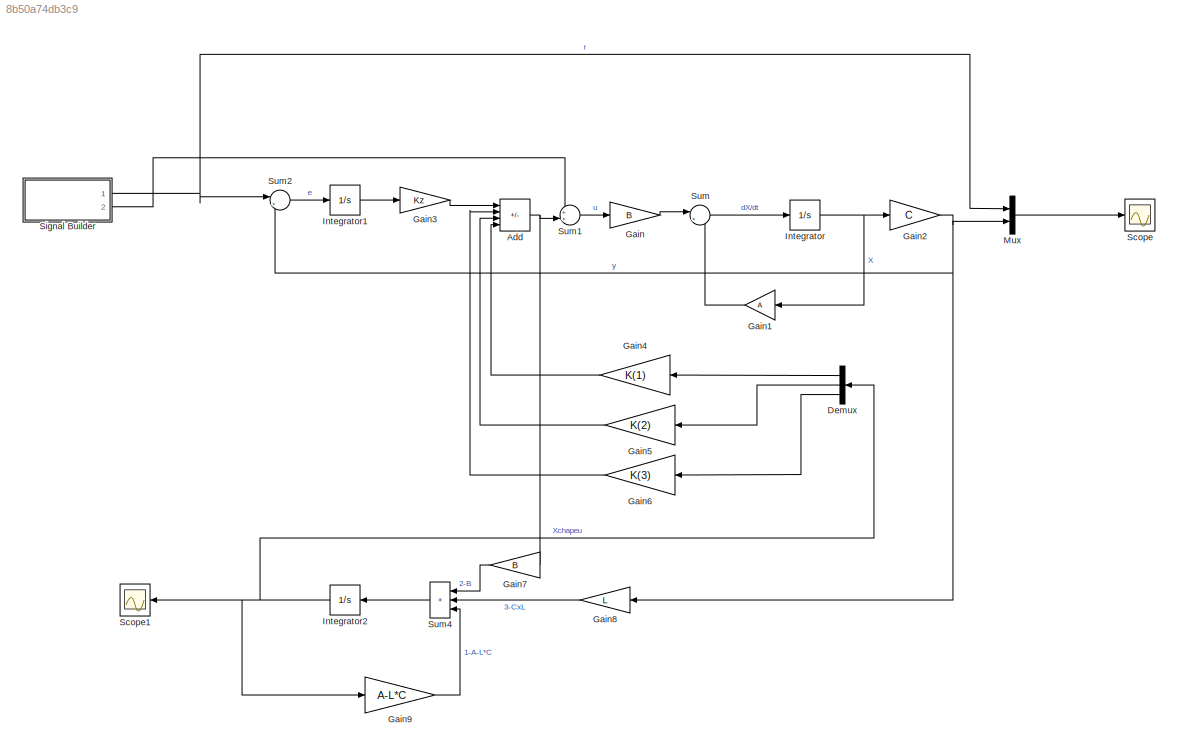
MODEL slx_8b50a74db3c9
KIND model
CONFIG AbsTol = auto
CONFIG EnableMultiTasking = off
CONFIG FixedStep = auto
CONFIG MaxStep = auto
CONFIG MinStep = auto
CONFIG RelTol = 1e-3
CONFIG SampleTimeConstraint = Unconstrained
CONFIG Solver = VariableStepAuto
CONFIG SolverName = VariableStepAuto
CONFIG StartTime = 0.0
CONFIG StopTime = 90
BLOCK [Sum] Add
  IconShape = rectangular
  Inputs = ----
  Ports = [4, 1]
BLOCK [Demux] Demux
  Outputs = 3
  Ports = [1, 3]
BLOCK [Gain] Gain
  Gain = B
  Multiplication = Matrix(K*u)
BLOCK [Gain] Gain1
  Gain = A
  Multiplication = Matrix(K*u)
  NameLocation = top
BLOCK [Gain] Gain2
  Gain = C
  Multiplication = Matrix(K*u)
BLOCK [Gain] Gain3
  Gain = Kz
BLOCK [Gain] Gain4
  Gain = K(1)
  Multiplication = Matrix(K*u)
BLOCK [Gain] Gain5
  Gain = K(2)
  Multiplication = Matrix(K*u)
BLOCK [Gain] Gain6
  Gain = K(3)
  Multiplication = Matrix(K*u)
BLOCK [Gain] Gain7
  Gain = B
  Multiplication = Matrix(K*u)
BLOCK [Gain] Gain8
  Gain = L
  Multiplication = Matrix(K*u)
BLOCK [Gain] Gain9
  Gain = A-L*C
  Multiplication = Matrix(K*u)
  NameLocation = top
BLOCK [Integrator] Integrator
  Ports = [1, 1]
BLOCK [Integrator] Integrator1
  Ports = [1, 1]
BLOCK [Integrator] Integrator2
  Ports = [1, 1]
BLOCK [Mux] Mux
  DisplayOption = bar
  Inputs = 2
  Ports = [2, 1]
BLOCK [Scope] Scope
  Floating = off
  NumInputPorts = 1
  Ports = [1]
  ScopeSpecificationString = Simulink.scopes.TimeScopeBlockCfg('CurrentConfiguration', extmgr.ConfigurationSet(extmgr.Configuration('Core','General UI',true),extmgr.Configuration('Core','Source UI',true),extmgr.Configuration('Sources','WiredSimulink',true),extmgr.Configuration('Visuals','Time Domain',true,'SerializedDisplays',{struct('MinYLimReal','-179.55935','MaxYLimReal','140.03963','YLabelReal','','MinYLimMag',' 0.00000',...<+1436ch>
BLOCK [Scope] Scope1
  Floating = off
  NumInputPorts = 1
  Ports = [1]
  ScopeSpecificationString = Simulink.scopes.TimeScopeBlockCfg('CurrentConfiguration', extmgr.ConfigurationSet(extmgr.Configuration('Core','General UI',true),extmgr.Configuration('Core','Source UI',true),extmgr.Configuration('Sources','WiredSimulink',true,'DataLoggingVariableName','ScopeData1'),extmgr.Configuration('Visuals','Time Domain',true,'SerializedDisplays',{struct('MinYLimReal','-2.83894','MaxYLimReal','2.14653','YLab...<+1507ch>
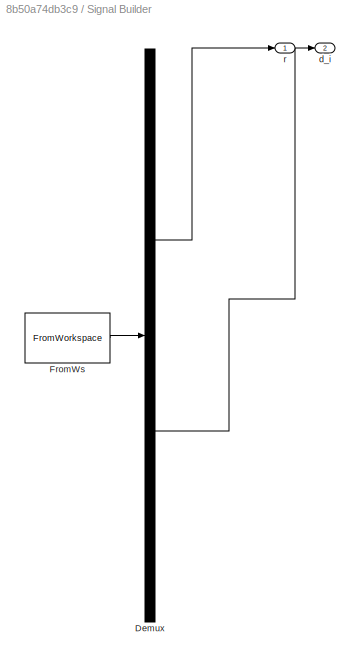
BLOCK [SubSystem] Signal Builder
  ClipboardFcn = sigbuilder_block('clipboard');
  CloseFcn = sigbuilder_block('close');
  ContinueFcn = sigbuilder_block('continue');
  CopyFcn = sigbuilder_block('copy');
  DeleteFcn = sigbuilder_block('delete');
  LoadFcn = sigbuilder_block('load');
  MaskHideContents = on
  ModelCloseFcn = sigbuilder_block('modelClose');
  NameChangeFcn = sigbuilder_block('namechange');
  OpenFcn = sigbuilder_block('open',[299 204 690 436 ]);
  PauseFcn = sigbuilder_block('pause');
  Ports = [0, 2]
  PreSaveFcn = sigbuilder_block('preSave');
  RequestExecContextInheritance = off
  StartFcn = sigbuilder_block('start');
  StopFcn = sigbuilder_block('stop');
  Tag = STV Subsys
BLOCK [Demux] Signal Builder/Demux
  DisplayOption = none
  Outputs = 2
  Ports = [1, 2]
  Tag = STV Demux
BLOCK [FromWorkspace] Signal Builder/FromWs
  Tag = STV FromWs
  VariableName = tuvar
BLOCK [Outport] Signal Builder/d_i
  Port = 2
  Tag = STV Outport
BLOCK [Outport] Signal Builder/r
  Tag = STV Outport
BLOCK [Sum] Sum
  Inputs = |++
  Ports = [2, 1]
BLOCK [Sum] Sum1
  Inputs = ++|
  Ports = [2, 1]
BLOCK [Sum] Sum2
  Inputs = |+-
  Ports = [2, 1]
BLOCK [Sum] Sum4
  IconShape = rectangular
  Inputs = +++
  Ports = [3, 1]
NET Add:1 -> Gain7:1, Sum1:2
LINE Demux:1 -> Gain4:1
LINE Demux:2 -> Gain5:1
LINE Demux:3 -> Gain6:1
LINE Gain1:1 -> Sum:2
NET Gain2:1 -> Gain8:1, Mux:2, Sum2:2
LINE Gain3:1 -> Add:1
LINE Gain4:1 -> Add:4
LINE Gain5:1 -> Add:3
LINE Gain6:1 -> Add:2
LINE Gain7:1 -> Sum4:1
LINE Gain8:1 -> Sum4:2
LINE Gain9:1 -> Sum4:3
LINE Gain:1 -> Sum:1
LINE Integrator1:1 -> Gain3:1
NET Integrator2:1 -> Demux:1, Gain9:1, Scope1:1
NET Integrator:1 -> Gain1:1, Gain2:1
LINE Mux:1 -> Scope:1
NET Signal Builder:1 -> Mux:1, Sum2:1
LINE Signal Builder:2 -> Sum1:1
LINE Sum1:1 -> Gain:1
LINE Sum2:1 -> Integrator1:1
LINE Sum4:1 -> Integrator2:1
LINE Sum:1 -> Integrator:1
note: NET lines group one-source signal fan-out (src -> all destinations, sorted); 1:1 wires keep LINE
